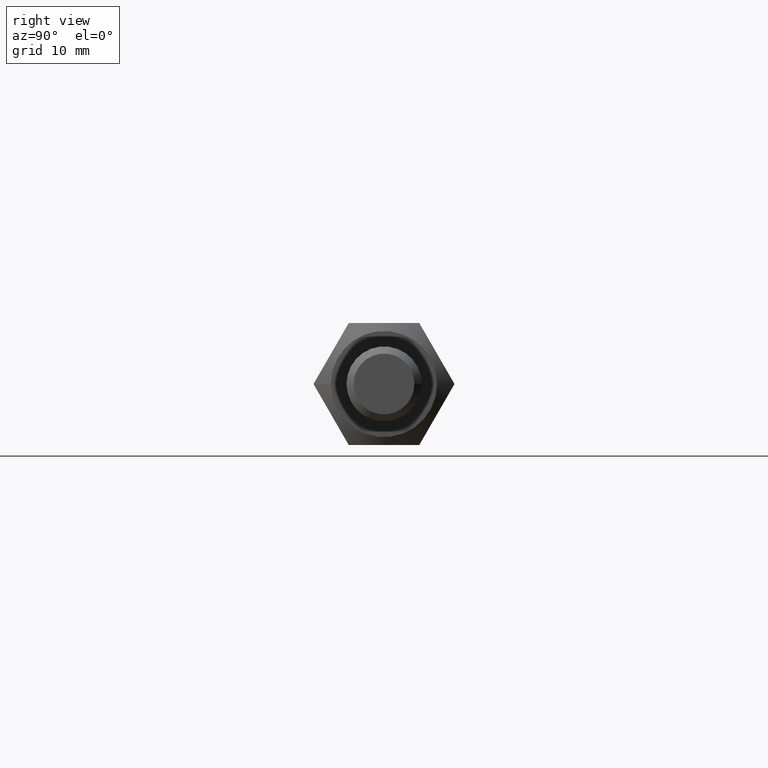
[diagram: clean part render]
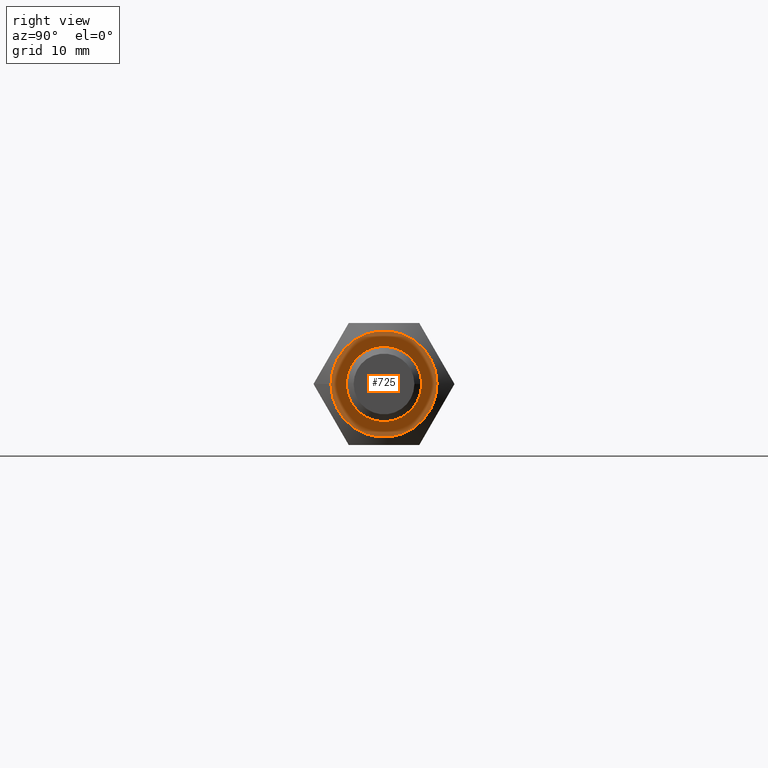
[diagram: same view with one face highlighted and labeled with its STEP entity id]
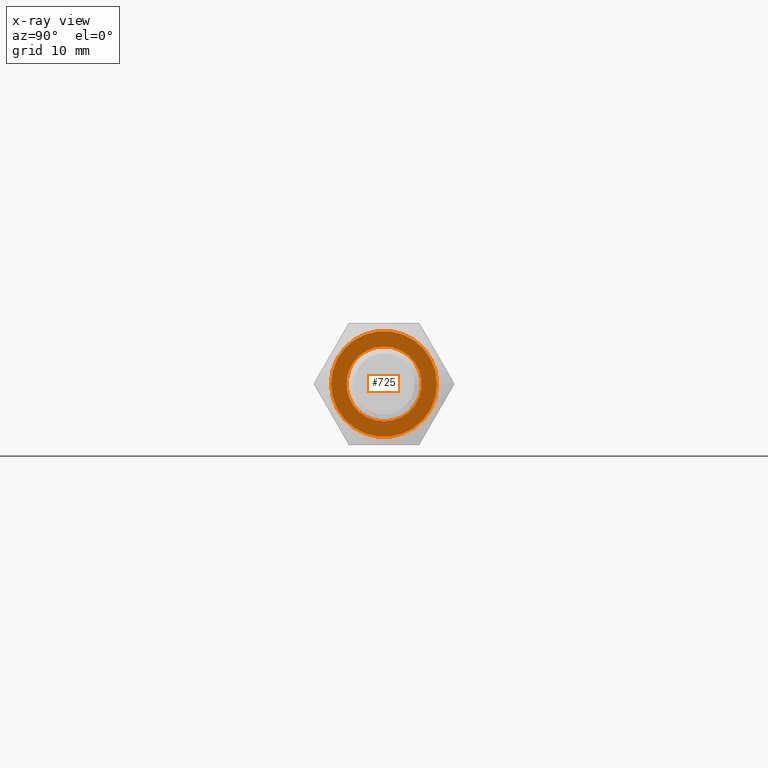
[diagram: x-ray of the same camera — body ghosted, the highlighted face saturated]
A machine part, right view. The second image highlights one B-rep face of the part: STEP entity #725.
The next image is the same camera in x-ray: the body ghosted, the highlighted face saturated — about 0% of this face is hidden behind the body in this view.
In plain terms, the highlighted planar face has unit normal (1, 0, 0).
Its self-contained STEP definition (entity closure, byte-faithful):
#24=FACE_BOUND('',#183,.T.);
#80=PLANE('',#824);
#130=FACE_OUTER_BOUND('',#182,.T.);
#182=EDGE_LOOP('',(#627));
#183=EDGE_LOOP('',(#628));
#296=CIRCLE('',#823,4.00008234670659);
#297=CIRCLE('',#825,5.65);
#348=VERTEX_POINT('',#1242);
#349=VERTEX_POINT('',#1246);
#443=EDGE_CURVE('',#348,#348,#296,.T.);
#444=EDGE_CURVE('',#349,#349,#297,.T.);
#627=ORIENTED_EDGE('',*,*,#444,.T.);
#628=ORIENTED_EDGE('',*,*,#443,.F.);
#725=ADVANCED_FACE('',(#130,#24),#80,.T.);
#823=AXIS2_PLACEMENT_3D('',#1244,#995,#996);
#824=AXIS2_PLACEMENT_3D('',#1245,#997,#998);
#825=AXIS2_PLACEMENT_3D('',#1247,#999,#1000);
#995=DIRECTION('center_axis',(1.,0.,0.));
#996=DIRECTION('ref_axis',(0.,0.,1.));
#997=DIRECTION('center_axis',(1.,0.,0.));
#998=DIRECTION('ref_axis',(0.,0.,-1.));
#999=DIRECTION('center_axis',(1.,0.,0.));
#1000=DIRECTION('ref_axis',(0.,1.,0.));
#1242=CARTESIAN_POINT('',(52.8051378196226,4.93074472425959E-15,-4.00008234670659));
#1244=CARTESIAN_POINT('Origin',(52.8051378196226,4.44089209850063E-15,0.));
#1245=CARTESIAN_POINT('Origin',(52.8051378196226,5.19786234256324E-15,-3.7470027081099E-15));
#1246=CARTESIAN_POINT('',(52.8051378196226,-5.65,6.91925441518255E-16));
#1247=CARTESIAN_POINT('Origin',(52.8051378196226,4.44089209850063E-15,0.));